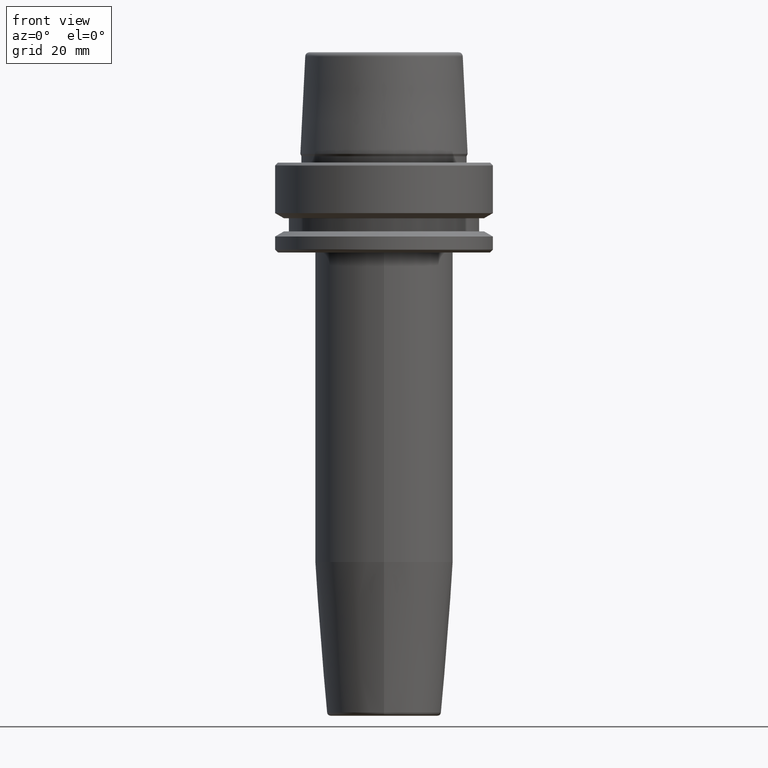
[diagram: clean part render]
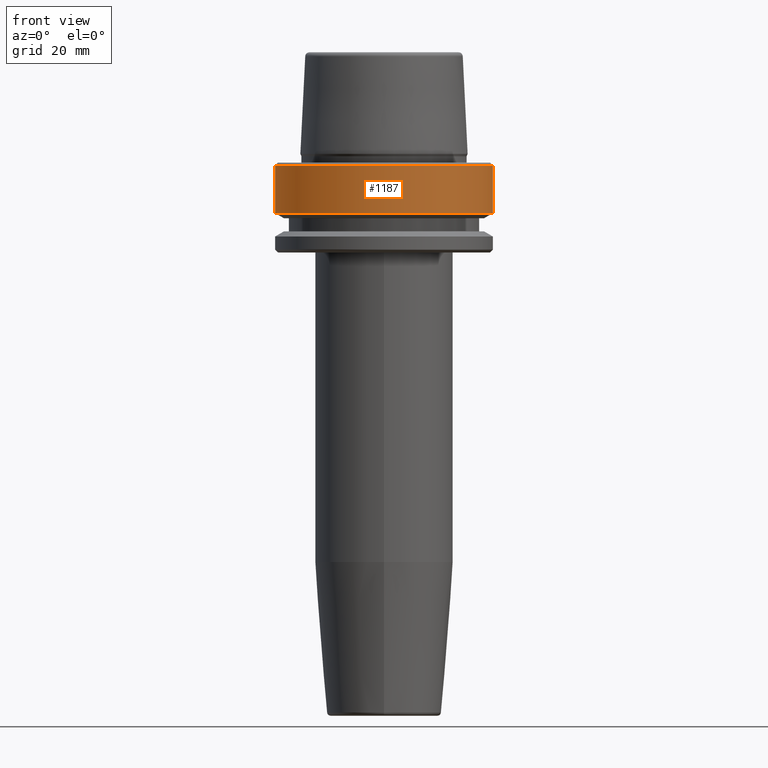
[diagram: same view with one face highlighted and labeled with its STEP entity id]
A machine part, front view. The second image highlights one B-rep face of the part: STEP entity #1187.
In plain terms, the highlighted cylindrical surface (partial cylindrical patch) has radius 31.5 mm, axis along (-0, -0, 1).
Its self-contained STEP definition (entity closure, byte-faithful):
#83 = CARTESIAN_POINT ( 'NONE',  ( -31.50000000000000000, 3.857637417314162700E-015, -14.62250092524070100 ) ) ;
#93 = ORIENTED_EDGE ( 'NONE', *, *, #1140, .T. ) ;
#107 = LINE ( 'NONE', #1238, #1128 ) ;
#140 = AXIS2_PLACEMENT_3D ( 'NONE', #464, #574, #376 ) ;
#250 = VERTEX_POINT ( 'NONE', #454 ) ;
#265 = CARTESIAN_POINT ( 'NONE',  ( 0.0000000000000000000, 0.0000000000000000000, -14.62250092524070100 ) ) ;
#290 = ORIENTED_EDGE ( 'NONE', *, *, #380, .F. ) ;
#318 = CIRCLE ( 'NONE', #952, 31.50000000000000000 ) ;
#349 = CARTESIAN_POINT ( 'NONE',  ( -31.50000000000000700, 3.857637417314163500E-015, -0.9656854249492363700 ) ) ;
#369 = DIRECTION ( 'NONE',  ( 1.000000000000000000, 0.0000000000000000000, 0.0000000000000000000 ) ) ;
#376 = DIRECTION ( 'NONE',  ( 1.000000000000000000, 0.0000000000000000000, 0.0000000000000000000 ) ) ;
#380 = EDGE_CURVE ( 'NONE', #1032, #250, #582, .T. ) ;
#416 = DIRECTION ( 'NONE',  ( 1.000000000000000000, 0.0000000000000000000, 0.0000000000000000000 ) ) ;
#424 = CARTESIAN_POINT ( 'NONE',  ( 31.50000000000000000, 0.0000000000000000000, -14.62250092524070100 ) ) ;
#454 = CARTESIAN_POINT ( 'NONE',  ( 31.50000000000000700, 0.0000000000000000000, -0.9656854249492363700 ) ) ;
#455 = EDGE_CURVE ( 'NONE', #1172, #1032, #107, .T. ) ;
#464 = CARTESIAN_POINT ( 'NONE',  ( 0.0000000000000000000, 0.0000000000000000000, 78.96908074195309300 ) ) ;
#506 = LINE ( 'NONE', #1097, #740 ) ;
#512 = DIRECTION ( 'NONE',  ( -0.0000000000000000000, -0.0000000000000000000, 1.000000000000000000 ) ) ;
#574 = DIRECTION ( 'NONE',  ( -0.0000000000000000000, -0.0000000000000000000, 1.000000000000000000 ) ) ;
#582 = CIRCLE ( 'NONE', #697, 31.50000000000000700 ) ;
#644 = VERTEX_POINT ( 'NONE', #424 ) ;
#697 = AXIS2_PLACEMENT_3D ( 'NONE', #810, #512, #416 ) ;
#740 = VECTOR ( 'NONE', #808, 1000.000000000000000 ) ;
#743 = ORIENTED_EDGE ( 'NONE', *, *, #879, .T. ) ;
#808 = DIRECTION ( 'NONE',  ( -0.0000000000000000000, -0.0000000000000000000, 1.000000000000000000 ) ) ;
#810 = CARTESIAN_POINT ( 'NONE',  ( 0.0000000000000000000, 0.0000000000000000000, -0.9656854249492363700 ) ) ;
#871 = FACE_OUTER_BOUND ( 'NONE', #891, .T. ) ;
#879 = EDGE_CURVE ( 'NONE', #644, #250, #506, .T. ) ;
#891 = EDGE_LOOP ( 'NONE', ( #1232, #93, #743, #290 ) ) ;
#901 = DIRECTION ( 'NONE',  ( -0.0000000000000000000, -0.0000000000000000000, 1.000000000000000000 ) ) ;
#952 = AXIS2_PLACEMENT_3D ( 'NONE', #265, #957, #369 ) ;
#957 = DIRECTION ( 'NONE',  ( -0.0000000000000000000, -0.0000000000000000000, 1.000000000000000000 ) ) ;
#1032 = VERTEX_POINT ( 'NONE', #349 ) ;
#1043 = CYLINDRICAL_SURFACE ( 'NONE', #140, 31.50000000000000000 ) ;
#1097 = CARTESIAN_POINT ( 'NONE',  ( 31.50000000000000000, 0.0000000000000000000, 78.96908074195309300 ) ) ;
#1128 = VECTOR ( 'NONE', #901, 1000.000000000000000 ) ;
#1140 = EDGE_CURVE ( 'NONE', #1172, #644, #318, .T. ) ;
#1172 = VERTEX_POINT ( 'NONE', #83 ) ;
#1187 = ADVANCED_FACE ( 'NONE', ( #871 ), #1043, .T. ) ;
#1232 = ORIENTED_EDGE ( 'NONE', *, *, #455, .F. ) ;
#1238 = CARTESIAN_POINT ( 'NONE',  ( -31.50000000000000000, 3.857637417314162700E-015, 78.96908074195309300 ) ) ;